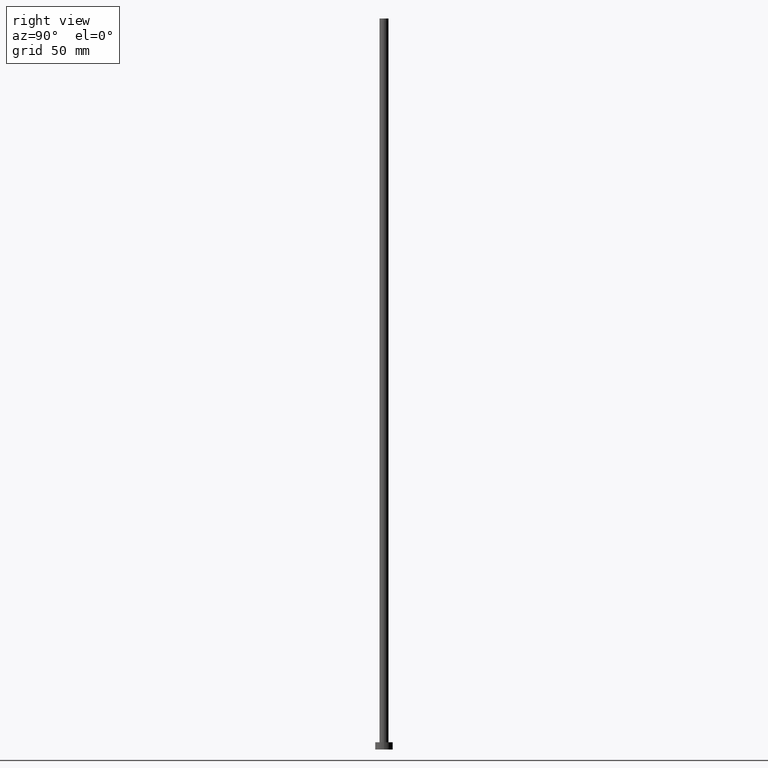
[diagram: clean part render]
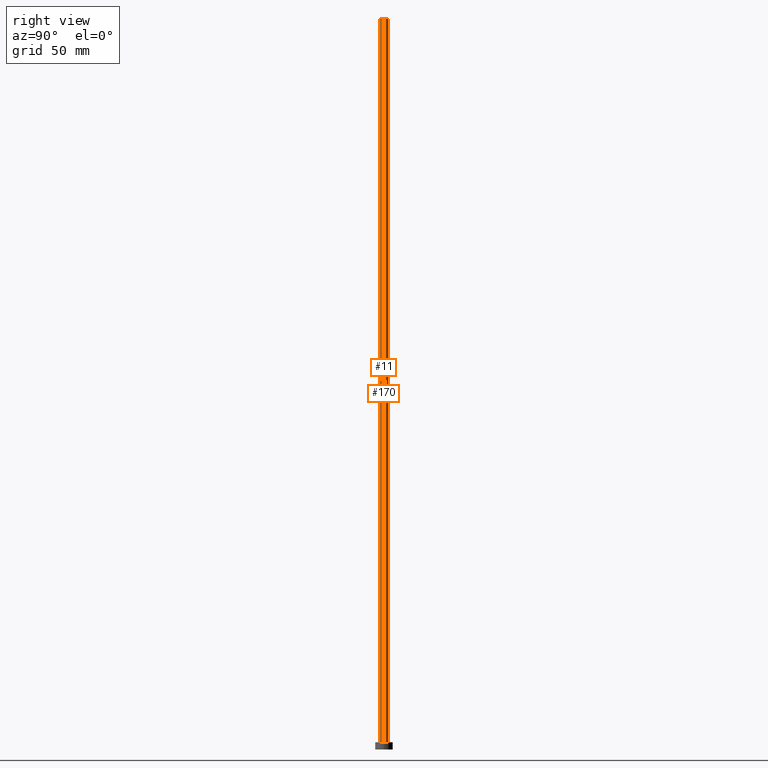
[diagram: same view with one multi-face feature highlighted, each face labeled with its STEP entity id]
A machine part, right view. The highlighted faces form ONE feature: a constant-radius fillet chain: 2 tangent blend faces with common blend radius 3.1 mm. The faces share edges in the B-rep.
Their STEP definitions:
[1] entity #11 (Cylinder):
#11 = ADVANCED_FACE ( 'NONE', ( #222 ), #148, .T. ) ;
#24 = VECTOR ( 'NONE', #255, 1000.000000000000000 ) ;
#25 = DIRECTION ( 'NONE',  ( 1.000000000000000000, 0.000000000000000000, 0.000000000000000000 ) ) ;
#27 = CARTESIAN_POINT ( 'NONE',  ( 0.000000000000000000, 0.000000000000000000, 500.0000000000000000 ) ) ;
#30 = AXIS2_PLACEMENT_3D ( 'NONE', #27, #174, #241 ) ;
#44 = CARTESIAN_POINT ( 'NONE',  ( 3.100000000000000089, 3.796405077356794918E-16, 5.000000000000000000 ) ) ;
#45 = ORIENTED_EDGE ( 'NONE', *, *, #157, .F. ) ;
#59 = CIRCLE ( 'NONE', #218, 3.100000000000000089 ) ;
#66 = CARTESIAN_POINT ( 'NONE',  ( 0.000000000000000000, 0.000000000000000000, 5.000000000000000000 ) ) ;
#67 = LINE ( 'NONE', #177, #132 ) ;
#71 = ORIENTED_EDGE ( 'NONE', *, *, #181, .T. ) ;
#89 = DIRECTION ( 'NONE',  ( 1.000000000000000000, 0.000000000000000000, 0.000000000000000000 ) ) ;
#91 = ORIENTED_EDGE ( 'NONE', *, *, #114, .T. ) ;
#105 = LINE ( 'NONE', #187, #24 ) ;
#112 = CARTESIAN_POINT ( 'NONE',  ( -3.100000000000000089, 0.000000000000000000, 500.0000000000000000 ) ) ;
#113 = CIRCLE ( 'NONE', #242, 3.100000000000000089 ) ;
#114 = EDGE_CURVE ( 'NONE', #194, #143, #105, .T. ) ;
#126 = DIRECTION ( 'NONE',  ( 0.000000000000000000, 0.000000000000000000, 1.000000000000000000 ) ) ;
#130 = CARTESIAN_POINT ( 'NONE',  ( -3.100000000000000089, 0.000000000000000000, 5.000000000000000000 ) ) ;
#132 = VECTOR ( 'NONE', #152, 1000.000000000000000 ) ;
#134 = CARTESIAN_POINT ( 'NONE',  ( 3.100000000000000089, 3.796405077356794918E-16, 500.0000000000000000 ) ) ;
#143 = VERTEX_POINT ( 'NONE', #130 ) ;
#146 = VERTEX_POINT ( 'NONE', #44 ) ;
#147 = CARTESIAN_POINT ( 'NONE',  ( 0.000000000000000000, 0.000000000000000000, 500.0000000000000000 ) ) ;
#148 = CYLINDRICAL_SURFACE ( 'NONE', #30, 3.100000000000000089 ) ;
#149 = EDGE_LOOP ( 'NONE', ( #45, #162, #91, #71 ) ) ;
#152 = DIRECTION ( 'NONE',  ( -0.000000000000000000, -0.000000000000000000, -1.000000000000000000 ) ) ;
#157 = EDGE_CURVE ( 'NONE', #227, #146, #67, .T. ) ;
#162 = ORIENTED_EDGE ( 'NONE', *, *, #189, .F. ) ;
#174 = DIRECTION ( 'NONE',  ( -0.000000000000000000, -0.000000000000000000, -1.000000000000000000 ) ) ;
#177 = CARTESIAN_POINT ( 'NONE',  ( 3.100000000000000089, 3.796405077356794918E-16, 500.0000000000000000 ) ) ;
#181 = EDGE_CURVE ( 'NONE', #143, #146, #59, .T. ) ;
#187 = CARTESIAN_POINT ( 'NONE',  ( -3.100000000000000089, 0.000000000000000000, 500.0000000000000000 ) ) ;
#189 = EDGE_CURVE ( 'NONE', #194, #227, #113, .T. ) ;
#194 = VERTEX_POINT ( 'NONE', #112 ) ;
#218 = AXIS2_PLACEMENT_3D ( 'NONE', #66, #234, #89 ) ;
#222 = FACE_OUTER_BOUND ( 'NONE', #149, .T. ) ;
#227 = VERTEX_POINT ( 'NONE', #134 ) ;
#234 = DIRECTION ( 'NONE',  ( 0.000000000000000000, 0.000000000000000000, 1.000000000000000000 ) ) ;
#241 = DIRECTION ( 'NONE',  ( -1.000000000000000000, 0.000000000000000000, 0.000000000000000000 ) ) ;
#242 = AXIS2_PLACEMENT_3D ( 'NONE', #147, #126, #25 ) ;
#255 = DIRECTION ( 'NONE',  ( -0.000000000000000000, -0.000000000000000000, -1.000000000000000000 ) ) ;
[2] entity #170 (Cylinder):
#7 = DIRECTION ( 'NONE',  ( -0.000000000000000000, -0.000000000000000000, -1.000000000000000000 ) ) ;
#14 = CARTESIAN_POINT ( 'NONE',  ( 0.000000000000000000, 0.000000000000000000, 5.000000000000000000 ) ) ;
#23 = ORIENTED_EDGE ( 'NONE', *, *, #95, .T. ) ;
#24 = VECTOR ( 'NONE', #255, 1000.000000000000000 ) ;
#44 = CARTESIAN_POINT ( 'NONE',  ( 3.100000000000000089, 3.796405077356794918E-16, 5.000000000000000000 ) ) ;
#57 = CYLINDRICAL_SURFACE ( 'NONE', #236, 3.100000000000000089 ) ;
#67 = LINE ( 'NONE', #177, #132 ) ;
#70 = DIRECTION ( 'NONE',  ( 0.000000000000000000, 0.000000000000000000, 1.000000000000000000 ) ) ;
#77 = CARTESIAN_POINT ( 'NONE',  ( 0.000000000000000000, 0.000000000000000000, 500.0000000000000000 ) ) ;
#87 = ORIENTED_EDGE ( 'NONE', *, *, #135, .F. ) ;
#95 = EDGE_CURVE ( 'NONE', #146, #143, #122, .T. ) ;
#104 = DIRECTION ( 'NONE',  ( 1.000000000000000000, 0.000000000000000000, 0.000000000000000000 ) ) ;
#105 = LINE ( 'NONE', #187, #24 ) ;
#109 = ORIENTED_EDGE ( 'NONE', *, *, #157, .T. ) ;
#110 = FACE_OUTER_BOUND ( 'NONE', #168, .T. ) ;
#112 = CARTESIAN_POINT ( 'NONE',  ( -3.100000000000000089, 0.000000000000000000, 500.0000000000000000 ) ) ;
#114 = EDGE_CURVE ( 'NONE', #194, #143, #105, .T. ) ;
#122 = CIRCLE ( 'NONE', #213, 3.100000000000000089 ) ;
#130 = CARTESIAN_POINT ( 'NONE',  ( -3.100000000000000089, 0.000000000000000000, 5.000000000000000000 ) ) ;
#132 = VECTOR ( 'NONE', #152, 1000.000000000000000 ) ;
#134 = CARTESIAN_POINT ( 'NONE',  ( 3.100000000000000089, 3.796405077356794918E-16, 500.0000000000000000 ) ) ;
#135 = EDGE_CURVE ( 'NONE', #227, #194, #249, .T. ) ;
#143 = VERTEX_POINT ( 'NONE', #130 ) ;
#145 = DIRECTION ( 'NONE',  ( -1.000000000000000000, 0.000000000000000000, 0.000000000000000000 ) ) ;
#146 = VERTEX_POINT ( 'NONE', #44 ) ;
#152 = DIRECTION ( 'NONE',  ( -0.000000000000000000, -0.000000000000000000, -1.000000000000000000 ) ) ;
#157 = EDGE_CURVE ( 'NONE', #227, #146, #67, .T. ) ;
#168 = EDGE_LOOP ( 'NONE', ( #87, #109, #23, #217 ) ) ;
#170 = ADVANCED_FACE ( 'NONE', ( #110 ), #57, .T. ) ;
#173 = DIRECTION ( 'NONE',  ( 1.000000000000000000, 0.000000000000000000, 0.000000000000000000 ) ) ;
#177 = CARTESIAN_POINT ( 'NONE',  ( 3.100000000000000089, 3.796405077356794918E-16, 500.0000000000000000 ) ) ;
#179 = AXIS2_PLACEMENT_3D ( 'NONE', #244, #70, #173 ) ;
#187 = CARTESIAN_POINT ( 'NONE',  ( -3.100000000000000089, 0.000000000000000000, 500.0000000000000000 ) ) ;
#194 = VERTEX_POINT ( 'NONE', #112 ) ;
#212 = DIRECTION ( 'NONE',  ( 0.000000000000000000, 0.000000000000000000, 1.000000000000000000 ) ) ;
#213 = AXIS2_PLACEMENT_3D ( 'NONE', #14, #212, #104 ) ;
#217 = ORIENTED_EDGE ( 'NONE', *, *, #114, .F. ) ;
#227 = VERTEX_POINT ( 'NONE', #134 ) ;
#236 = AXIS2_PLACEMENT_3D ( 'NONE', #77, #7, #145 ) ;
#244 = CARTESIAN_POINT ( 'NONE',  ( 0.000000000000000000, 0.000000000000000000, 500.0000000000000000 ) ) ;
#249 = CIRCLE ( 'NONE', #179, 3.100000000000000089 ) ;
#255 = DIRECTION ( 'NONE',  ( -0.000000000000000000, -0.000000000000000000, -1.000000000000000000 ) ) ;